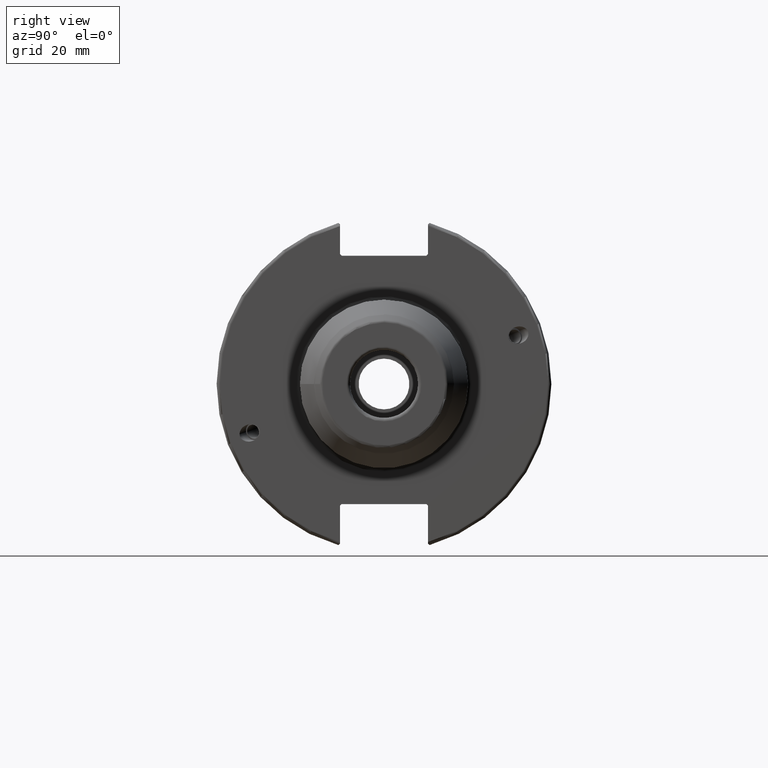
[diagram: clean part render]
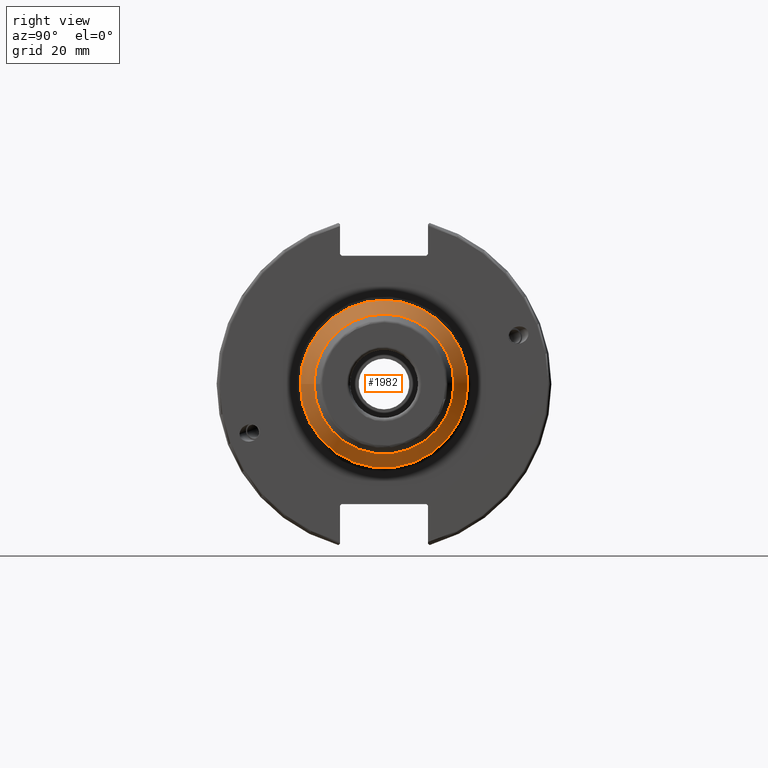
[diagram: same view with one face highlighted and labeled with its STEP entity id]
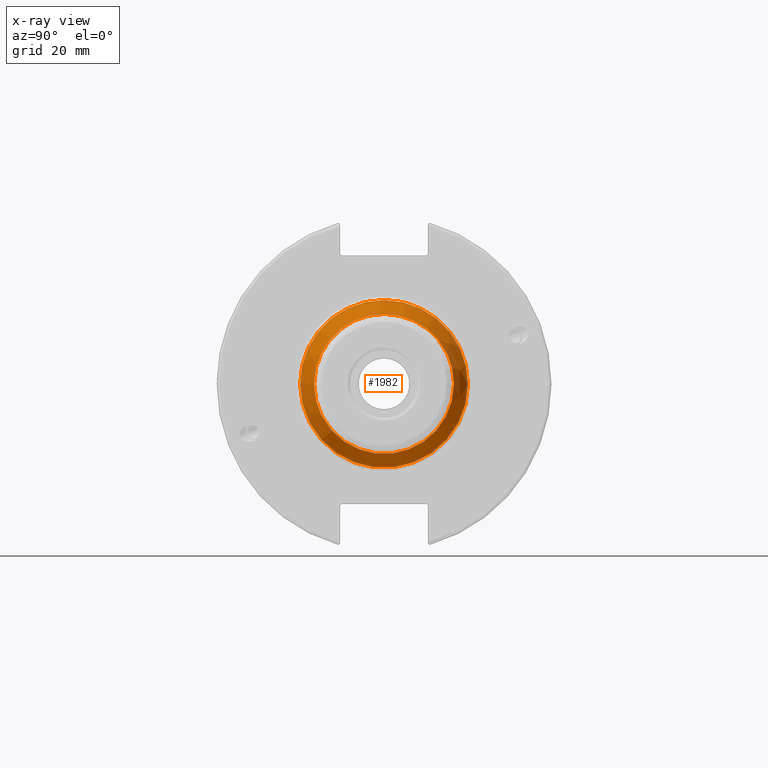
[diagram: x-ray of the same camera — body ghosted, the highlighted face saturated]
A machine part, right view. The second image highlights one B-rep face of the part: STEP entity #1982.
The next image is the same camera in x-ray: the body ghosted, the highlighted face saturated — about 0% of this face is hidden behind the body in this view.
In plain terms, the highlighted conical surface has half-angle 25 deg.
Its self-contained STEP definition (entity closure, byte-faithful):
#53=CONICAL_SURFACE('',#2158,22.6154133945609,0.436332312998556);
#157=LINE('',#3214,#253);
#253=VECTOR('',#2546,22.6154133945609);
#378=FACE_OUTER_BOUND('',#484,.T.);
#484=EDGE_LOOP('',(#1422,#1423,#1424,#1425,#1426,#1427,#1428,#1429));
#630=CIRCLE('',#2154,24.6563077870366);
#631=CIRCLE('',#2155,24.6563077870366);
#632=CIRCLE('',#2156,24.6563077870366);
#634=CIRCLE('',#2159,20.5745190020853);
#635=CIRCLE('',#2160,20.5745190020853);
#636=CIRCLE('',#2161,20.5745190020853);
#808=VERTEX_POINT('',#3201);
#809=VERTEX_POINT('',#3202);
#810=VERTEX_POINT('',#3204);
#811=VERTEX_POINT('',#3209);
#812=VERTEX_POINT('',#3210);
#813=VERTEX_POINT('',#3212);
#1050=EDGE_CURVE('',#808,#809,#630,.T.);
#1051=EDGE_CURVE('',#810,#808,#631,.T.);
#1052=EDGE_CURVE('',#809,#810,#632,.T.);
#1054=EDGE_CURVE('',#811,#812,#634,.T.);
#1055=EDGE_CURVE('',#813,#811,#635,.T.);
#1056=EDGE_CURVE('',#813,#810,#157,.T.);
#1057=EDGE_CURVE('',#812,#813,#636,.T.);
#1422=ORIENTED_EDGE('',*,*,#1054,.F.);
#1423=ORIENTED_EDGE('',*,*,#1055,.F.);
#1424=ORIENTED_EDGE('',*,*,#1056,.T.);
#1425=ORIENTED_EDGE('',*,*,#1051,.T.);
#1426=ORIENTED_EDGE('',*,*,#1050,.T.);
#1427=ORIENTED_EDGE('',*,*,#1052,.T.);
#1428=ORIENTED_EDGE('',*,*,#1056,.F.);
#1429=ORIENTED_EDGE('',*,*,#1057,.F.);
#1982=ADVANCED_FACE('',(#378),#53,.T.);
#2154=AXIS2_PLACEMENT_3D('',#3203,#2532,#2533);
#2155=AXIS2_PLACEMENT_3D('',#3205,#2534,#2535);
#2156=AXIS2_PLACEMENT_3D('',#3206,#2536,#2537);
#2158=AXIS2_PLACEMENT_3D('',#3208,#2540,#2541);
#2159=AXIS2_PLACEMENT_3D('',#3211,#2542,#2543);
#2160=AXIS2_PLACEMENT_3D('',#3213,#2544,#2545);
#2161=AXIS2_PLACEMENT_3D('',#3215,#2547,#2548);
#2532=DIRECTION('center_axis',(1.,0.,0.));
#2533=DIRECTION('ref_axis',(0.,0.,-1.));
#2534=DIRECTION('center_axis',(1.,0.,0.));
#2535=DIRECTION('ref_axis',(0.,0.,-1.));
#2536=DIRECTION('center_axis',(1.,0.,0.));
#2537=DIRECTION('ref_axis',(0.,0.,-1.));
#2540=DIRECTION('center_axis',(-1.,0.,0.));
#2541=DIRECTION('ref_axis',(0.,1.,0.));
#2542=DIRECTION('center_axis',(1.,0.,0.));
#2543=DIRECTION('ref_axis',(0.,0.,-1.));
#2544=DIRECTION('center_axis',(1.,0.,0.));
#2545=DIRECTION('ref_axis',(0.,0.,-1.));
#2546=DIRECTION('',(-0.906307787036661,-0.422618261740676,-5.17558101501937E-17));
#2547=DIRECTION('center_axis',(1.,0.,0.));
#2548=DIRECTION('ref_axis',(0.,0.,-1.));
#3201=CARTESIAN_POINT('',(53.5867691869314,24.6563077870366,0.));
#3202=CARTESIAN_POINT('',(53.5867691869314,-3.01952684101864E-15,24.6563077870366));
#3203=CARTESIAN_POINT('Origin',(53.5867691869314,0.,0.));
#3204=CARTESIAN_POINT('',(53.5867691869314,-24.6563077870366,-3.01952684101864E-15));
#3205=CARTESIAN_POINT('Origin',(53.5867691869314,0.,0.));
#3206=CARTESIAN_POINT('Origin',(53.5867691869314,0.,0.));
#3208=CARTESIAN_POINT('Origin',(57.963481335625,0.,0.));
#3209=CARTESIAN_POINT('',(62.3401934843185,20.5745190020853,0.));
#3210=CARTESIAN_POINT('',(62.3401934843185,-2.51965188399001E-15,20.5745190020853));
#3211=CARTESIAN_POINT('Origin',(62.3401934843185,0.,0.));
#3212=CARTESIAN_POINT('',(62.3401934843185,-20.5745190020853,-2.51965188399001E-15));
#3213=CARTESIAN_POINT('Origin',(62.3401934843185,0.,0.));
#3214=CARTESIAN_POINT('',(57.963481335625,-22.6154133945609,-2.76958936250432E-15));
#3215=CARTESIAN_POINT('Origin',(62.3401934843185,0.,0.));